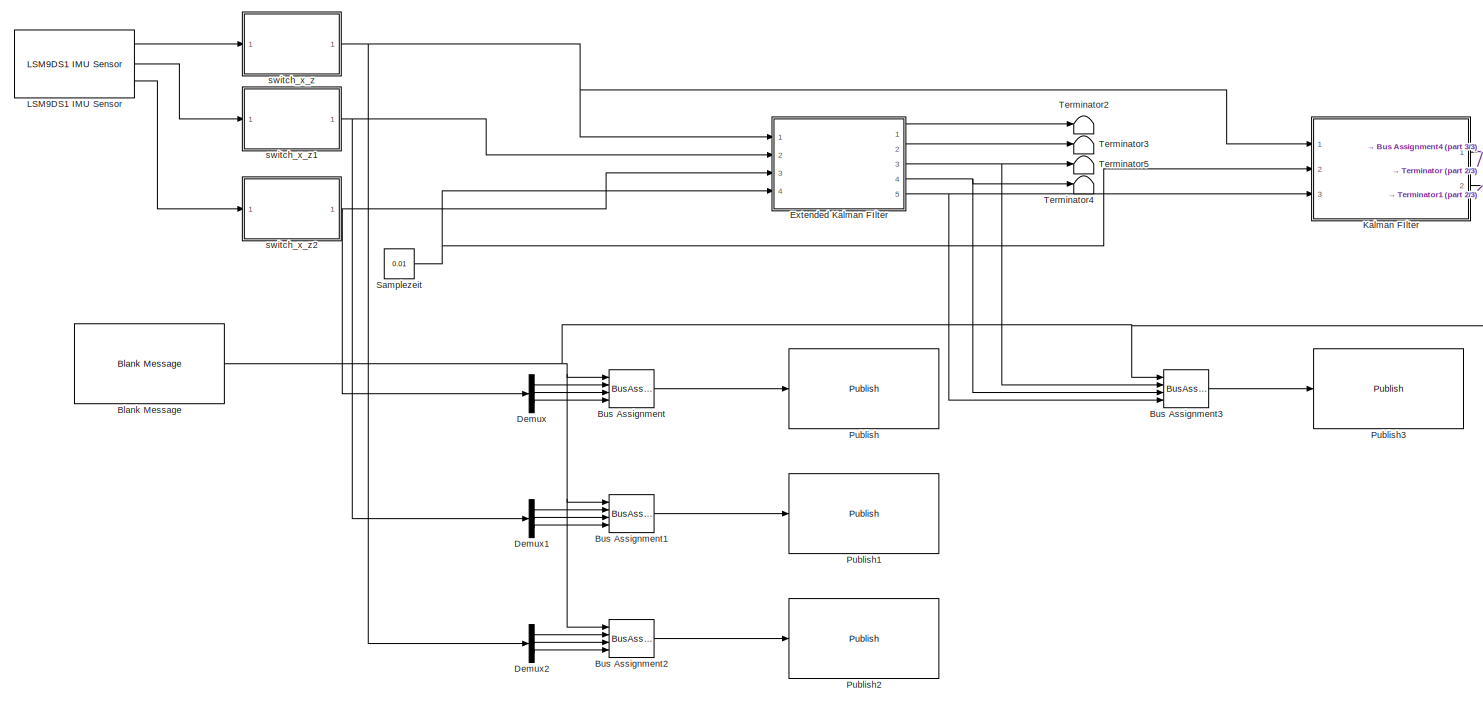
[diagram: root canvas - part 1/3, most of the canvas]
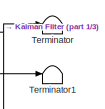
[diagram: root canvas - part 2/3, top right region]
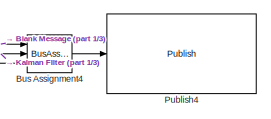
[diagram: root canvas - part 3/3, middle right region]
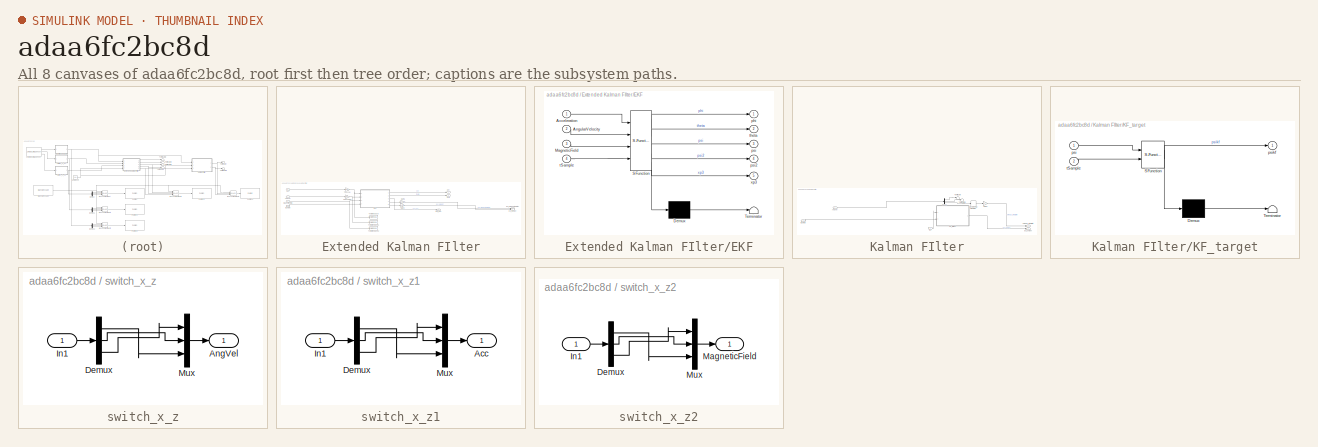
[diagram: thumbnail index - all 8 canvases of the model, root first then tree order]
MODEL slx_adaa6fc2bc8d
KIND model
CONFIG AbsTol = auto
CONFIG EnableMultiTasking = on
CONFIG FixedStep = 0.01
CONFIG MaxStep = auto
CONFIG MinStep = auto
CONFIG RelTol = 1e-3
CONFIG SampleTimeConstraint = Unconstrained
CONFIG Solver = FixedStepAuto
CONFIG SolverName = FixedStepAuto
CONFIG StartTime = 0.0
CONFIG StopTime = inf
BLOCK [Reference] Blank Message  REF=robotlib/Blank Message
  Ports = [0, 1]
  SourceBlock = robotlib/Blank Message
  SourceProductBaseCode = RR
  SourceType = ROS Blank Message
BLOCK [BusAssignment] Bus Assignment
  AssignedSignals = X,Y,Z
  Ports = [4, 1]
BLOCK [BusAssignment] Bus Assignment1
  AssignedSignals = X,Y,Z
  Ports = [4, 1]
BLOCK [BusAssignment] Bus Assignment2
  AssignedSignals = X,Y,Z
  Ports = [4, 1]
BLOCK [BusAssignment] Bus Assignment3
  AssignedSignals = X,Y,Z
  Ports = [4, 1]
BLOCK [BusAssignment] Bus Assignment4
  AssignedSignals = Y,Z
  Ports = [3, 1]
BLOCK [Demux] Demux
  Outputs = 3
  Ports = [1, 3]
BLOCK [Demux] Demux1
  Outputs = 3
  Ports = [1, 3]
BLOCK [Demux] Demux2
  Outputs = 3
  Ports = [1, 3]
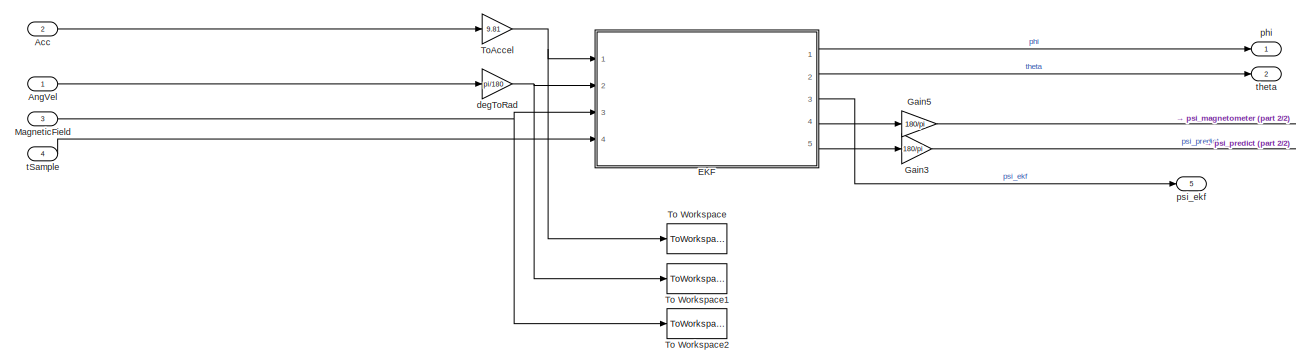
[diagram: Extended Kalman FIlter - part 1/2, center side, full height]
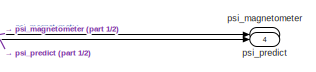
[diagram: Extended Kalman FIlter - part 2/2, middle right region]
BLOCK [SubSystem] Extended Kalman FIlter
  Ports = [4, 5]
  RequestExecContextInheritance = off
BLOCK [Inport] Extended Kalman FIlter/Acc
  Port = 2
BLOCK [Inport] Extended Kalman FIlter/AngVel
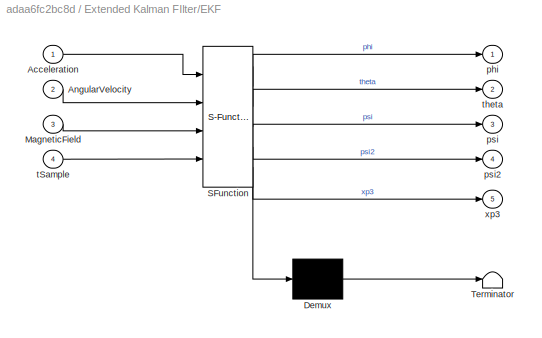
BLOCK [SubSystem] Extended Kalman FIlter/EKF
  ErrorFcn = Stateflow.Translate.translate
  PermitHierarchicalResolution = ExplicitOnly
  Ports = [4, 5]
  RequestExecContextInheritance = off
  SFBlockType = MATLAB Function
  TreatAsAtomicUnit = on
BLOCK [Demux] Extended Kalman FIlter/EKF/ Demux 
  Outputs = 1
  Ports = [1, 1]
BLOCK [S-Function] Extended Kalman FIlter/EKF/ SFunction 
  EnableBusSupport = on
  FunctionName = sf_sfun
  PortCounts = [4 6]
  Ports = [4, 6]
  SFcnIsStateOwnerBlock = off
  SFunctionDeploymentMode = off
  Tag = Stateflow S-Function 2
BLOCK [Terminator] Extended Kalman FIlter/EKF/ Terminator 
BLOCK [Inport] Extended Kalman FIlter/EKF/Acceleration
BLOCK [Inport] Extended Kalman FIlter/EKF/AngularVelocity
  Port = 2
BLOCK [Inport] Extended Kalman FIlter/EKF/MagneticField
  Port = 3
BLOCK [Outport] Extended Kalman FIlter/EKF/phi
  VectorParamsAs1DForOutWhenUnconnected = off
BLOCK [Outport] Extended Kalman FIlter/EKF/psi
  Port = 3
  VectorParamsAs1DForOutWhenUnconnected = off
BLOCK [Outport] Extended Kalman FIlter/EKF/psi2
  Port = 4
  VectorParamsAs1DForOutWhenUnconnected = off
BLOCK [Inport] Extended Kalman FIlter/EKF/tSample
  Port = 4
BLOCK [Outport] Extended Kalman FIlter/EKF/theta
  Port = 2
  VectorParamsAs1DForOutWhenUnconnected = off
BLOCK [Outport] Extended Kalman FIlter/EKF/xp3
  Port = 5
  VectorParamsAs1DForOutWhenUnconnected = off
BLOCK [Gain] Extended Kalman FIlter/Gain3
  Gain = 180/pi
BLOCK [Gain] Extended Kalman FIlter/Gain5
  Gain = 180/pi
BLOCK [Inport] Extended Kalman FIlter/MagneticField
  Port = 3
BLOCK [ToWorkspace] Extended Kalman FIlter/To Workspace
  Commented = on
  FixptAsFi = on
  MaxDataPoints = inf
  Ports = [1]
  SampleTime = -1
  VariableName = acceleration
BLOCK [ToWorkspace] Extended Kalman FIlter/To Workspace1
  Commented = on
  FixptAsFi = on
  MaxDataPoints = inf
  Ports = [1]
  SampleTime = -1
  VariableName = angVel
BLOCK [ToWorkspace] Extended Kalman FIlter/To Workspace2
  Commented = on
  FixptAsFi = on
  MaxDataPoints = inf
  Ports = [1]
  SampleTime = -1
  VariableName = magneticField
BLOCK [Gain] Extended Kalman FIlter/ToAccel
  Gain = 9.81
  Multiplication = Matrix(K*u)
BLOCK [Gain] Extended Kalman FIlter/degToRad
  Gain = pi/180
  Multiplication = Matrix(K*u)
BLOCK [Outport] Extended Kalman FIlter/phi
  VectorParamsAs1DForOutWhenUnconnected = off
BLOCK [Outport] Extended Kalman FIlter/psi_ekf
  Port = 5
  VectorParamsAs1DForOutWhenUnconnected = off
BLOCK [Outport] Extended Kalman FIlter/psi_magnetometer
  Port = 3
  VectorParamsAs1DForOutWhenUnconnected = off
BLOCK [Outport] Extended Kalman FIlter/psi_predict
  Port = 4
  VectorParamsAs1DForOutWhenUnconnected = off
BLOCK [Inport] Extended Kalman FIlter/tSample
  Port = 4
BLOCK [Outport] Extended Kalman FIlter/theta
  Port = 2
  VectorParamsAs1DForOutWhenUnconnected = off
BLOCK [SubSystem] Kalman FIlter
  Ports = [3, 2]
  RequestExecContextInheritance = off
BLOCK [Inport] Kalman FIlter/AngVel
BLOCK [Demux] Kalman FIlter/Demux
  Outputs = 3
  Ports = [1, 3]
BLOCK [DiscreteIntegrator] Kalman FIlter/Discrete-Time Integrator
  ICPrevOutput = DiscIntNeverNeededParam
  ICPrevScaledInput = DiscIntNeverNeededParam
  InitialConditionSetting = Auto
  Ports = [1, 1]
  SampleTime = -1
BLOCK [Gain] Kalman FIlter/Gain6
  Gain = -1
BLOCK [Inport] Kalman FIlter/In3
  Port = 3
BLOCK [SubSystem] Kalman FIlter/KF_target
  ErrorFcn = Stateflow.Translate.translate
  PermitHierarchicalResolution = ExplicitOnly
  Ports = [2, 1]
  RequestExecContextInheritance = off
  SFBlockType = MATLAB Function
  TreatAsAtomicUnit = on
BLOCK [Demux] Kalman FIlter/KF_target/ Demux 
  Outputs = 1
  Ports = [1, 1]
BLOCK [S-Function] Kalman FIlter/KF_target/ SFunction 
  EnableBusSupport = on
  FunctionName = sf_sfun
  PortCounts = [2 2]
  Ports = [2, 2]
  SFcnIsStateOwnerBlock = off
  SFunctionDeploymentMode = off
  Tag = Stateflow S-Function 1
BLOCK [Terminator] Kalman FIlter/KF_target/ Terminator 
BLOCK [Inport] Kalman FIlter/KF_target/psi
BLOCK [Outport] Kalman FIlter/KF_target/psikf
  VectorParamsAs1DForOutWhenUnconnected = off
BLOCK [Inport] Kalman FIlter/KF_target/tSample
  Port = 2
BLOCK [Terminator] Kalman FIlter/Terminator
BLOCK [Terminator] Kalman FIlter/Terminator1
BLOCK [Outport] Kalman FIlter/omega_integriert
  VectorParamsAs1DForOutWhenUnconnected = off
BLOCK [Outport] Kalman FIlter/psi_ekfukf
  Port = 2
  VectorParamsAs1DForOutWhenUnconnected = off
BLOCK [Inport] Kalman FIlter/tSample
  Port = 2
BLOCK [Reference] LSM9DS1 IMU Sensor  REF=sensehatlib/LSM9DS1 IMU Sensor
  Ports = [0, 3]
  SourceBlock = sensehatlib/LSM9DS1 IMU Sensor
  SourceProductBaseCode = RASPPI
  SourceType = LSM9DS1 9-DoF IMU Sensor
BLOCK [Reference] Publish  REF=robotlib/Publish
  Ports = [1]
  SourceBlock = robotlib/Publish
  SourceProductBaseCode = RR
  SourceType = ROS Publish
BLOCK [Reference] Publish1  REF=robotlib/Publish
  Ports = [1]
  SourceBlock = robotlib/Publish
  SourceProductBaseCode = RR
  SourceType = ROS Publish
BLOCK [Reference] Publish2  REF=robotlib/Publish
  Ports = [1]
  SourceBlock = robotlib/Publish
  SourceProductBaseCode = RR
  SourceType = ROS Publish
BLOCK [Reference] Publish3  REF=robotlib/Publish
  Ports = [1]
  SourceBlock = robotlib/Publish
  SourceProductBaseCode = RR
  SourceType = ROS Publish
BLOCK [Reference] Publish4  REF=robotlib/Publish
  Ports = [1]
  SourceBlock = robotlib/Publish
  SourceProductBaseCode = RR
  SourceType = ROS Publish
BLOCK [Constant] Samplezeit
  Value = 0.01
BLOCK [Terminator] Terminator
BLOCK [Terminator] Terminator1
BLOCK [Terminator] Terminator2
BLOCK [Terminator] Terminator3
BLOCK [Terminator] Terminator4
BLOCK [Terminator] Terminator5
BLOCK [SubSystem] switch_x_z
  Ports = [1, 1]
  RequestExecContextInheritance = off
BLOCK [Outport] switch_x_z/AngVel
BLOCK [Demux] switch_x_z/Demux
  Outputs = 3
  Ports = [1, 3]
BLOCK [Inport] switch_x_z/In1
BLOCK [Mux] switch_x_z/Mux
  DisplayOption = bar
  Inputs = 3
  Ports = [3, 1]
BLOCK [SubSystem] switch_x_z1
  Ports = [1, 1]
  RequestExecContextInheritance = off
BLOCK [Outport] switch_x_z1/Acc
BLOCK [Demux] switch_x_z1/Demux
  Outputs = 3
  Ports = [1, 3]
BLOCK [Inport] switch_x_z1/In1
BLOCK [Mux] switch_x_z1/Mux
  DisplayOption = bar
  Inputs = 3
  Ports = [3, 1]
BLOCK [SubSystem] switch_x_z2
  Ports = [1, 1]
  RequestExecContextInheritance = off
BLOCK [Demux] switch_x_z2/Demux
  Outputs = 3
  Ports = [1, 3]
BLOCK [Inport] switch_x_z2/In1
BLOCK [Outport] switch_x_z2/MagneticField
BLOCK [Mux] switch_x_z2/Mux
  DisplayOption = bar
  Inputs = 3
  Ports = [3, 1]
NET Blank Message:1 -> Bus Assignment1:1, Bus Assignment2:1, Bus Assignment3:1, Bus Assignment4:1, Bus Assignment:1
LINE Bus Assignment1:1 -> Publish1:1
LINE Bus Assignment2:1 -> Publish2:1
LINE Bus Assignment3:1 -> Publish3:1
LINE Bus Assignment4:1 -> Publish4:1
LINE Bus Assignment:1 -> Publish:1
LINE Demux1:1 -> Bus Assignment1:2
LINE Demux1:2 -> Bus Assignment1:3
LINE Demux1:3 -> Bus Assignment1:4
LINE Demux2:1 -> Bus Assignment2:2
LINE Demux2:2 -> Bus Assignment2:3
LINE Demux2:3 -> Bus Assignment2:4
LINE Demux:1 -> Bus Assignment:2
LINE Demux:2 -> Bus Assignment:3
LINE Demux:3 -> Bus Assignment:4
LINE Extended Kalman FIlter/Acc:1 -> Extended Kalman FIlter/ToAccel:1
LINE Extended Kalman FIlter/AngVel:1 -> Extended Kalman FIlter/degToRad:1
LINE Extended Kalman FIlter/EKF:1 -> Extended Kalman FIlter/phi:1
LINE Extended Kalman FIlter/EKF:2 -> Extended Kalman FIlter/theta:1
LINE Extended Kalman FIlter/EKF:3 -> Extended Kalman FIlter/psi_ekf:1
LINE Extended Kalman FIlter/EKF:4 -> Extended Kalman FIlter/Gain5:1
LINE Extended Kalman FIlter/EKF:5 -> Extended Kalman FIlter/Gain3:1
LINE Extended Kalman FIlter/Gain3:1 -> Extended Kalman FIlter/psi_predict:1
LINE Extended Kalman FIlter/Gain5:1 -> Extended Kalman FIlter/psi_magnetometer:1
NET Extended Kalman FIlter/MagneticField:1 -> Extended Kalman FIlter/EKF:3, Extended Kalman FIlter/To Workspace2:1
NET Extended Kalman FIlter/ToAccel:1 -> Extended Kalman FIlter/EKF:1, Extended Kalman FIlter/To Workspace:1
NET Extended Kalman FIlter/degToRad:1 -> Extended Kalman FIlter/EKF:2, Extended Kalman FIlter/To Workspace1:1
LINE Extended Kalman FIlter/tSample:1 -> Extended Kalman FIlter/EKF:4
LINE Extended Kalman FIlter:1 -> Terminator2:1
LINE Extended Kalman FIlter:2 -> Terminator3:1
NET Extended Kalman FIlter:3 -> Bus Assignment3:2, Terminator5:1
NET Extended Kalman FIlter:4 -> Bus Assignment3:3, Terminator4:1
NET Extended Kalman FIlter:5 -> Bus Assignment3:4, Kalman FIlter:3
LINE Kalman FIlter/AngVel:1 -> Kalman FIlter/Demux:1
LINE Kalman FIlter/Demux:1 -> Kalman FIlter/Terminator:1
LINE Kalman FIlter/Demux:2 -> Kalman FIlter/Terminator1:1
LINE Kalman FIlter/Demux:3 -> Kalman FIlter/Discrete-Time Integrator:1
LINE Kalman FIlter/Discrete-Time Integrator:1 -> Kalman FIlter/Gain6:1
LINE Kalman FIlter/Gain6:1 -> Kalman FIlter/omega_integriert:1
LINE Kalman FIlter/In3:1 -> Kalman FIlter/KF_target:1
LINE Kalman FIlter/KF_target:1 -> Kalman FIlter/psi_ekfukf:1
LINE Kalman FIlter/tSample:1 -> Kalman FIlter/KF_target:2
NET Kalman FIlter:1 -> Bus Assignment4:2, Terminator:1
NET Kalman FIlter:2 -> Bus Assignment4:3, Terminator1:1
LINE LSM9DS1 IMU Sensor:1 -> switch_x_z:1
LINE LSM9DS1 IMU Sensor:2 -> switch_x_z1:1
LINE LSM9DS1 IMU Sensor:3 -> switch_x_z2:1
NET Samplezeit:1 -> Extended Kalman FIlter:4, Kalman FIlter:2
LINE switch_x_z/Demux:1 -> switch_x_z/Mux:3
LINE switch_x_z/Demux:2 -> switch_x_z/Mux:2
LINE switch_x_z/Demux:3 -> switch_x_z/Mux:1
LINE switch_x_z/In1:1 -> switch_x_z/Demux:1
LINE switch_x_z/Mux:1 -> switch_x_z/AngVel:1
LINE switch_x_z1/Demux:1 -> switch_x_z1/Mux:3
LINE switch_x_z1/Demux:2 -> switch_x_z1/Mux:2
LINE switch_x_z1/Demux:3 -> switch_x_z1/Mux:1
LINE switch_x_z1/In1:1 -> switch_x_z1/Demux:1
LINE switch_x_z1/Mux:1 -> switch_x_z1/Acc:1
NET switch_x_z1:1 -> Demux1:1, Extended Kalman FIlter:2
LINE switch_x_z2/Demux:1 -> switch_x_z2/Mux:3
LINE switch_x_z2/Demux:2 -> switch_x_z2/Mux:2
LINE switch_x_z2/Demux:3 -> switch_x_z2/Mux:1
LINE switch_x_z2/In1:1 -> switch_x_z2/Demux:1
LINE switch_x_z2/Mux:1 -> switch_x_z2/MagneticField:1
NET switch_x_z2:1 -> Demux:1, Extended Kalman FIlter:3
NET switch_x_z:1 -> Demux2:1, Extended Kalman FIlter:1, Kalman FIlter:1
note: NET lines group one-source signal fan-out (src -> all destinations, sorted); 1:1 wires keep LINE
CHART Kalman FIlter/KF_target states=1 transitions=1
  STATE_LABEL 'eML_blk_kernel()'
  STATE_LABEL "SCRIPT:\nfunction psikf   = fcn(psi,tSample)\n\npersistent x_dach P Q R C I A_d firstRun\n\nif isempty(firstRun)\n    \n  firstRun = 1;\n  \n     I=eye(2);\n\n     A_d = [1.0000    0.0100;\n           0    1.0000];\n       \n    C=[1 0];\n\n    Q=0.001*I;\n\n    R=1;\n\n    P = 0.1*eye(2);\n\n    x_dach = [psi 0]'; % Startwerte phi theta psi\n\nend\n\n\n%% Kalman Filter\n\n\nxp = A_d*x_dach;\n\nPp = A_d*P*A_d' + Q;    \n\nK = Pp*C...<+94ch>"
CHART Extended Kalman FIlter/EKF states=1 transitions=1
  STATE_LABEL 'eML_blk_kernel()'
  STATE_LABEL 'SCRIPT:\nfunction [phi,theta,psi,psi2,xp3] = fcn(Acceleration,AngularVelocity,MagneticField,tSample)\n\n%Funktion schaetzt die WInkel phi theta und psi mithilfe eines\n%Extenden-Kalman Filters\n%Eingabewerte: Daten aus LSM9DS1 fuer Sensordatenfusion und Samplezeit der\n%form 3x1\n%Ausgabewerte: WInkelschaetzungen phi, theta und psi sowie psi Berechnung\n%durch Magnetometer und Praediktion des Winkels Psi ...<+2585ch>'
CHART  states=0 transitions=0
CHART  states=0 transitions=0
